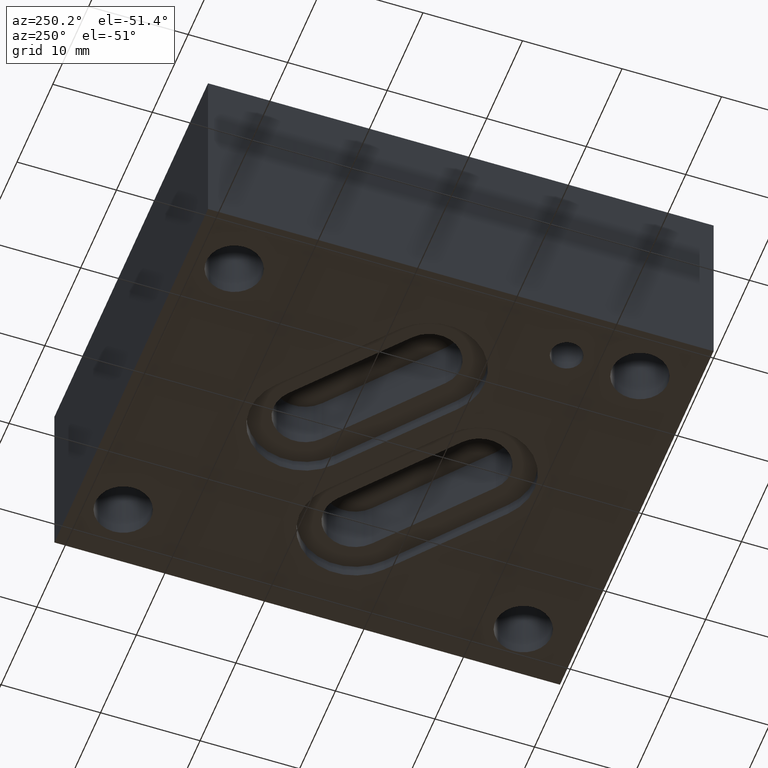
[diagram: clean part render]
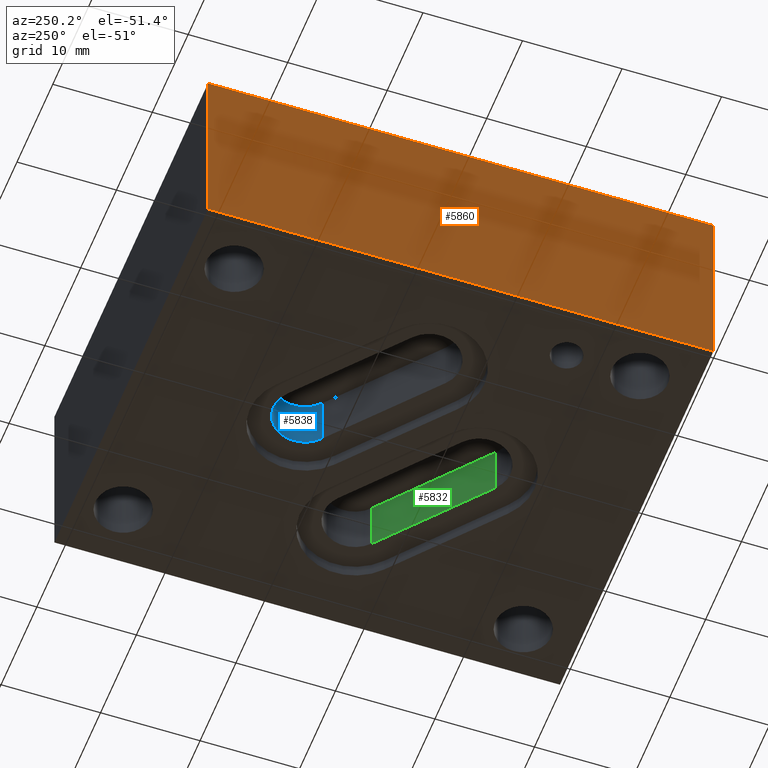
[diagram: same view with three faces highlighted in distinct colors, each labeled with its STEP entity id]
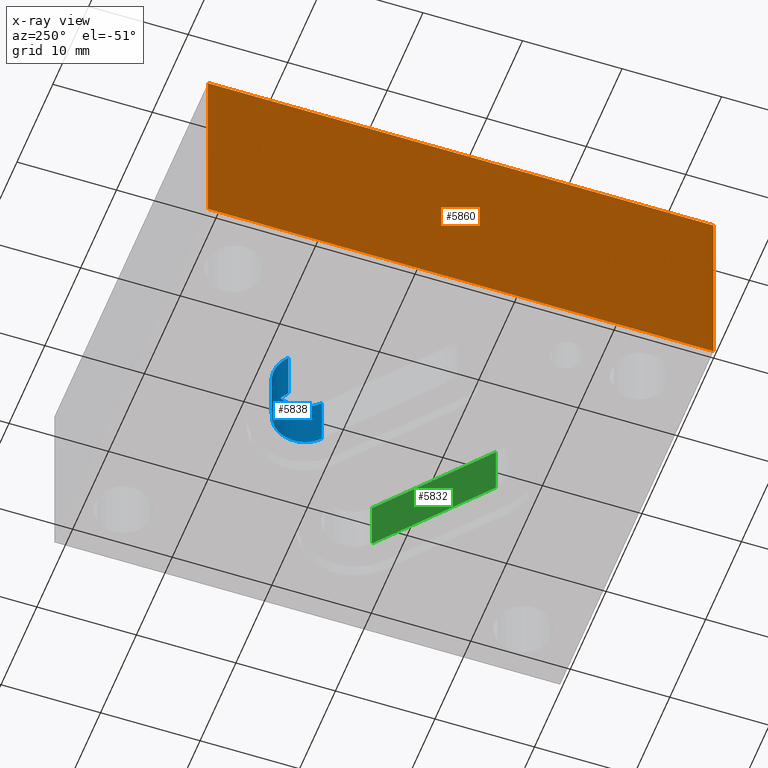
[diagram: x-ray of the same camera — body ghosted, the three highlighted faces saturated]
A machine part, auxiliary view with three faces highlighted in distinct colors.
The next image is the same camera in x-ray (body ghosted, the three faces saturated) — at least one of them is partly hidden behind the body in this view.
Their STEP definitions:

[orange] entity #5860 — the highlighted planar face has unit normal (-1, 0, 0).
#485=FACE_OUTER_BOUND('',#828,.T.);
#828=EDGE_LOOP('',(#5334,#5335,#5336,#5337));
#1419=LINE('',#10183,#2055);
#1446=LINE('',#10262,#2082);
#1457=LINE('',#10315,#2093);
#1466=LINE('',#10347,#2102);
#2055=VECTOR('',#7103,0.75);
#2082=VECTOR('',#7182,2.);
#2093=VECTOR('',#7237,2.);
#2102=VECTOR('',#7276,0.75);
#2779=VERTEX_POINT('',#10180);
#2780=VERTEX_POINT('',#10182);
#2806=VERTEX_POINT('',#10261);
#2826=VERTEX_POINT('',#10314);
#3592=EDGE_CURVE('',#2780,#2779,#1419,.T.);
#3629=EDGE_CURVE('',#2806,#2780,#1446,.T.);
#3656=EDGE_CURVE('',#2779,#2826,#1457,.T.);
#3671=EDGE_CURVE('',#2806,#2826,#1466,.T.);
#5334=ORIENTED_EDGE('',*,*,#3656,.T.);
#5335=ORIENTED_EDGE('',*,*,#3671,.F.);
#5336=ORIENTED_EDGE('',*,*,#3629,.T.);
#5337=ORIENTED_EDGE('',*,*,#3592,.T.);
#5553=PLANE('',#6134);
#5860=ADVANCED_FACE('',(#485),#5553,.T.);
#6134=AXIS2_PLACEMENT_3D('',#10346,#7274,#7275);
#7103=DIRECTION('',(0.,0.,1.));
#7182=DIRECTION('',(0.,-1.,0.));
#7237=DIRECTION('',(0.,1.,0.));
#7274=DIRECTION('center_axis',(-1.,0.,0.));
#7275=DIRECTION('ref_axis',(0.,0.,1.));
#7276=DIRECTION('',(0.,0.,1.));
#10180=CARTESIAN_POINT('',(0.,0.,0.75));
#10182=CARTESIAN_POINT('',(0.,0.,0.));
#10183=CARTESIAN_POINT('',(0.,0.,0.));
#10261=CARTESIAN_POINT('',(0.,2.,0.));
#10262=CARTESIAN_POINT('',(0.,2.,0.));
#10314=CARTESIAN_POINT('',(0.,2.,0.75));
#10315=CARTESIAN_POINT('',(0.,0.,0.75));
#10346=CARTESIAN_POINT('Origin',(0.,0.,0.));
#10347=CARTESIAN_POINT('',(0.,2.,0.));

[blue] entity #5838 — the highlighted cylindrical surface (edge-blend (fillet) strip) has radius 3.175 mm, axis along (0, 0, 1).
#20=CIRCLE('',#6085,0.125);
#21=CIRCLE('',#6086,0.125);
#50=CYLINDRICAL_SURFACE('',#6084,0.125);
#463=FACE_OUTER_BOUND('',#793,.T.);
#793=EDGE_LOOP('',(#5210,#5211,#5212,#5213));
#1433=LINE('',#10222,#2069);
#1434=LINE('',#10228,#2070);
#2069=VECTOR('',#7141,0.211);
#2070=VECTOR('',#7148,0.211);
#2791=VERTEX_POINT('',#10216);
#2793=VERTEX_POINT('',#10220);
#2794=VERTEX_POINT('',#10224);
#2795=VERTEX_POINT('',#10226);
#3610=EDGE_CURVE('',#2791,#2793,#1433,.T.);
#3611=EDGE_CURVE('',#2791,#2794,#20,.T.);
#3612=EDGE_CURVE('',#2795,#2793,#21,.T.);
#3613=EDGE_CURVE('',#2794,#2795,#1434,.T.);
#5210=ORIENTED_EDGE('',*,*,#3611,.F.);
#5211=ORIENTED_EDGE('',*,*,#3610,.T.);
#5212=ORIENTED_EDGE('',*,*,#3612,.F.);
#5213=ORIENTED_EDGE('',*,*,#3613,.F.);
#5838=ADVANCED_FACE('',(#463),#50,.F.);
#6084=AXIS2_PLACEMENT_3D('',#10223,#7142,#7143);
#6085=AXIS2_PLACEMENT_3D('',#10225,#7144,#7145);
#6086=AXIS2_PLACEMENT_3D('',#10227,#7146,#7147);
#7141=DIRECTION('',(0.,0.,1.));
#7142=DIRECTION('center_axis',(0.,0.,1.));
#7143=DIRECTION('ref_axis',(0.762958436227032,0.646447542024875,0.));
#7144=DIRECTION('center_axis',(0.,0.,1.));
#7145=DIRECTION('ref_axis',(-1.,0.,0.));
#7146=DIRECTION('center_axis',(0.,0.,-1.));
#7147=DIRECTION('ref_axis',(-1.,0.,0.));
#7148=DIRECTION('',(0.,0.,1.));
#10216=CARTESIAN_POINT('',(0.924805942753109,1.21663019547162,0.052));
#10220=CARTESIAN_POINT('',(0.92480594275311,1.21663019547162,0.263));
#10222=CARTESIAN_POINT('',(0.924805942753109,1.21663019547162,0.052));
#10223=CARTESIAN_POINT('Origin',(0.844,1.312,0.));
#10224=CARTESIAN_POINT('',(0.76319405724689,1.40736980452838,0.052));
#10225=CARTESIAN_POINT('Origin',(0.844,1.312,0.052));
#10226=CARTESIAN_POINT('',(0.76319405724689,1.40736980452838,0.263));
#10227=CARTESIAN_POINT('Origin',(0.844,1.312,0.263));
#10228=CARTESIAN_POINT('',(0.76319405724689,1.40736980452838,0.052));

[green] entity #5832 — the highlighted planar face has unit normal (0.6455, -0.7637, 0).
#457=FACE_OUTER_BOUND('',#787,.T.);
#787=EDGE_LOOP('',(#5186,#5187,#5188,#5189));
#1422=LINE('',#10192,#2058);
#1423=LINE('',#10194,#2059);
#1424=LINE('',#10196,#2060);
#1425=LINE('',#10197,#2061);
#2058=VECTOR('',#7112,0.532902430093915);
#2059=VECTOR('',#7113,0.211);
#2060=VECTOR('',#7114,0.532902430093915);
#2061=VECTOR('',#7115,0.211);
#2782=VERTEX_POINT('',#10190);
#2783=VERTEX_POINT('',#10191);
#2784=VERTEX_POINT('',#10193);
#2785=VERTEX_POINT('',#10195);
#3595=EDGE_CURVE('',#2782,#2783,#1422,.T.);
#3596=EDGE_CURVE('',#2782,#2784,#1423,.T.);
#3597=EDGE_CURVE('',#2785,#2784,#1424,.T.);
#3598=EDGE_CURVE('',#2783,#2785,#1425,.T.);
#5186=ORIENTED_EDGE('',*,*,#3595,.F.);
#5187=ORIENTED_EDGE('',*,*,#3596,.T.);
#5188=ORIENTED_EDGE('',*,*,#3597,.F.);
#5189=ORIENTED_EDGE('',*,*,#3598,.F.);
#5539=PLANE('',#6074);
#5832=ADVANCED_FACE('',(#457),#5539,.F.);
#6074=AXIS2_PLACEMENT_3D('',#10189,#7110,#7111);
#7110=DIRECTION('center_axis',(0.64552154498409,-0.763742060489897,0.));
#7111=DIRECTION('ref_axis',(0.,0.,-1.));
#7112=DIRECTION('',(0.763742060489897,0.64552154498409,0.));
#7113=DIRECTION('',(0.,0.,1.));
#7114=DIRECTION('',(-0.763742060489897,-0.64552154498409,0.));
#7115=DIRECTION('',(0.,0.,1.));
#10189=CARTESIAN_POINT('Origin',(1.33169019312301,0.872532242438763,0.));
#10190=CARTESIAN_POINT('',(0.924690193123011,0.528532242438763,0.052));
#10191=CARTESIAN_POINT('',(1.33169019312301,0.872532242438763,0.052));
#10192=CARTESIAN_POINT('',(0.924690193123011,0.528532242438763,0.052));
#10193=CARTESIAN_POINT('',(0.924690193123011,0.528532242438763,0.263));
#10194=CARTESIAN_POINT('',(0.924690193123011,0.528532242438763,0.052));
#10195=CARTESIAN_POINT('',(1.33169019312301,0.872532242438763,0.263));
#10196=CARTESIAN_POINT('',(1.33169019312301,0.872532242438763,0.263));
#10197=CARTESIAN_POINT('',(1.33169019312301,0.872532242438763,0.052));